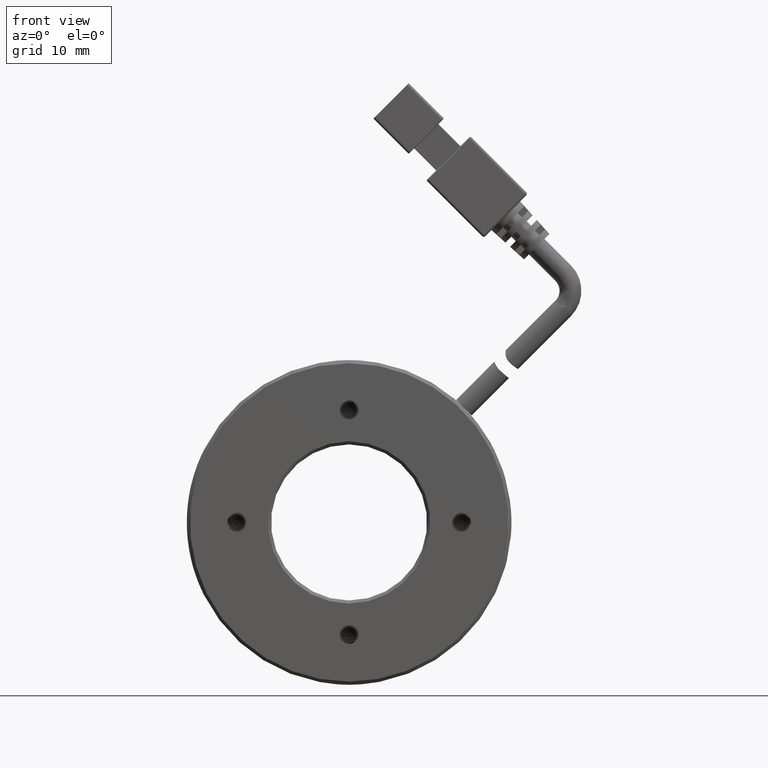
[diagram: clean part render]
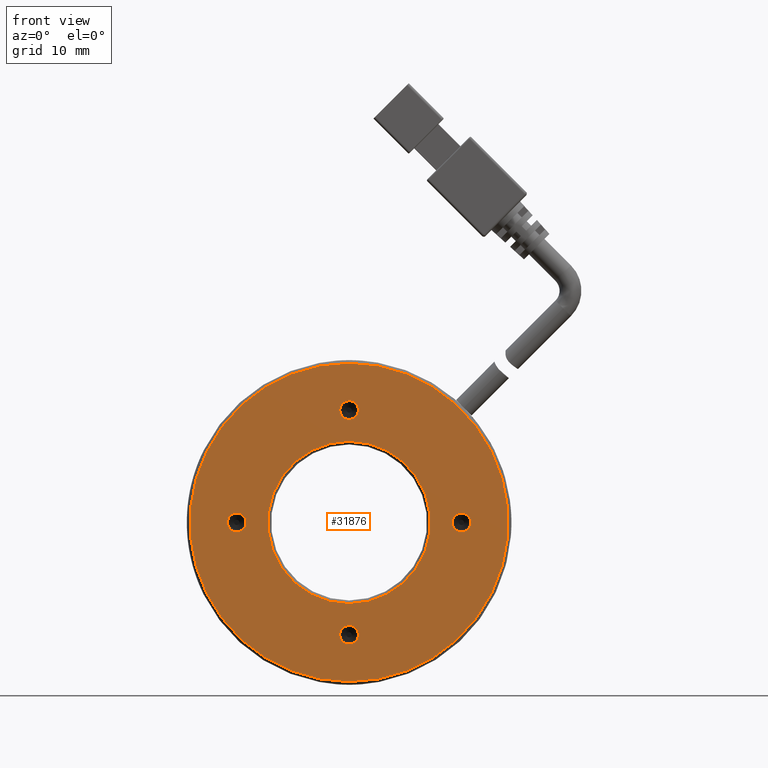
[diagram: same view with one face highlighted and labeled with its STEP entity id]
A machine part, front view. The second image highlights one B-rep face of the part: STEP entity #31876.
In plain terms, the highlighted planar face has unit normal (0, 1, 0).
Its self-contained STEP definition (entity closure, byte-faithful):
#164 = EDGE_CURVE ( 'NONE', #25248, #24536, #5331, .T. ) ;
#1008 = DIRECTION ( 'NONE',  ( 0.0000000000000000000, 0.0000000000000000000, 1.000000000000000000 ) ) ;
#1253 = ORIENTED_EDGE ( 'NONE', *, *, #15872, .F. ) ;
#1750 = ORIENTED_EDGE ( 'NONE', *, *, #28118, .F. ) ;
#1827 = VERTEX_POINT ( 'NONE', #32053 ) ;
#2661 = VERTEX_POINT ( 'NONE', #11872 ) ;
#2806 = CIRCLE ( 'NONE', #36710, 1.499999999999994400 ) ;
#3609 = DIRECTION ( 'NONE',  ( -0.0000000000000000000, -1.000000000000000000, -0.0000000000000000000 ) ) ;
#4163 = CARTESIAN_POINT ( 'NONE',  ( -0.8432364767453759400, -6.019923829761832000, -16.50000000000000700 ) ) ;
#4351 = FACE_BOUND ( 'NONE', #34930, .T. ) ;
#4488 = AXIS2_PLACEMENT_3D ( 'NONE', #11087, #36117, #14710 ) ;
#5331 = CIRCLE ( 'NONE', #18888, 1.499999999999994400 ) ;
#6559 = CIRCLE ( 'NONE', #10870, 25.50000000000002500 ) ;
#7046 = CARTESIAN_POINT ( 'NONE',  ( -0.8432364767453761600, -6.019923829761832000, -18.00000000000000400 ) ) ;
#8144 = CARTESIAN_POINT ( 'NONE',  ( -0.8432364767455022800, -6.019923829761832000, 19.49999999999999600 ) ) ;
#8912 = CARTESIAN_POINT ( 'NONE',  ( -0.8432364767453761600, -6.019923829761832000, -18.00000000000000400 ) ) ;
#9615 = DIRECTION ( 'NONE',  ( 0.0000000000000000000, -1.000000000000000000, 0.0000000000000000000 ) ) ;
#10699 = DIRECTION ( 'NONE',  ( 0.0000000000000000000, 0.0000000000000000000, -1.000000000000000000 ) ) ;
#10870 = AXIS2_PLACEMENT_3D ( 'NONE', #19493, #44583, #23112 ) ;
#10941 = EDGE_CURVE ( 'NONE', #28494, #31320, #19382, .T. ) ;
#11066 = ORIENTED_EDGE ( 'NONE', *, *, #30947, .F. ) ;
#11087 = CARTESIAN_POINT ( 'NONE',  ( 17.15676352325462500, -6.019923829761832000, 6.317795435625916900E-014 ) ) ;
#11300 = DIRECTION ( 'NONE',  ( -0.0000000000000000000, -1.000000000000000000, -0.0000000000000000000 ) ) ;
#11872 = CARTESIAN_POINT ( 'NONE',  ( -0.8432364767455025100, -6.019923829761832000, 16.50000000000000700 ) ) ;
#11915 = VERTEX_POINT ( 'NONE', #39195 ) ;
#12577 = DIRECTION ( 'NONE',  ( 0.0000000000000000000, 0.0000000000000000000, -1.000000000000000000 ) ) ;
#12832 = FACE_OUTER_BOUND ( 'NONE', #30278, .T. ) ;
#13914 = CARTESIAN_POINT ( 'NONE',  ( -0.8432364767455025100, -6.019923829761832000, 18.00000000000000400 ) ) ;
#13963 = FACE_BOUND ( 'NONE', #22976, .T. ) ;
#14652 = AXIS2_PLACEMENT_3D ( 'NONE', #14692, #39778, #18295 ) ;
#14692 = CARTESIAN_POINT ( 'NONE',  ( -26.84323647674538900, -6.019923829761832000, 0.0000000000000000000 ) ) ;
#14710 = DIRECTION ( 'NONE',  ( 0.0000000000000000000, 0.0000000000000000000, -1.000000000000000000 ) ) ;
#14795 = CIRCLE ( 'NONE', #37597, 25.50000000000002500 ) ;
#15193 = CIRCLE ( 'NONE', #40929, 1.499999999999994400 ) ;
#15379 = EDGE_LOOP ( 'NONE', ( #38876, #35094 ) ) ;
#15495 = CARTESIAN_POINT ( 'NONE',  ( -0.8432364767453765000, -6.019923829761832000, 0.0000000000000000000 ) ) ;
#15635 = VERTEX_POINT ( 'NONE', #44645 ) ;
#15872 = EDGE_CURVE ( 'NONE', #22267, #2661, #15193, .T. ) ;
#16178 = CIRCLE ( 'NONE', #36396, 13.00000000000000500 ) ;
#16348 = CARTESIAN_POINT ( 'NONE',  ( -0.8432364767453765000, -6.019923829761832000, 25.50000000000002500 ) ) ;
#16722 = EDGE_CURVE ( 'NONE', #1827, #11915, #16178, .T. ) ;
#16733 = CARTESIAN_POINT ( 'NONE',  ( -0.8432364767453761600, -6.019923829761832000, -19.49999999999999600 ) ) ;
#17202 = AXIS2_PLACEMENT_3D ( 'NONE', #31095, #9615, #34708 ) ;
#17506 = DIRECTION ( 'NONE',  ( 0.0000000000000000000, 0.0000000000000000000, -1.000000000000000000 ) ) ;
#17649 = ORIENTED_EDGE ( 'NONE', *, *, #41493, .F. ) ;
#18141 = PLANE ( 'NONE',  #14652 ) ;
#18295 = DIRECTION ( 'NONE',  ( 0.0000000000000000000, -0.0000000000000000000, 1.000000000000000000 ) ) ;
#18888 = AXIS2_PLACEMENT_3D ( 'NONE', #32932, #25214, #32773 ) ;
#19093 = DIRECTION ( 'NONE',  ( 0.0000000000000000000, 0.0000000000000000000, -1.000000000000000000 ) ) ;
#19268 = CARTESIAN_POINT ( 'NONE',  ( -18.84323647674537800, -6.019923829761832000, -1.888712825546119400E-013 ) ) ;
#19382 = CIRCLE ( 'NONE', #30668, 1.499999999999994400 ) ;
#19493 = CARTESIAN_POINT ( 'NONE',  ( -0.8432364767453765000, -6.019923829761832000, 0.0000000000000000000 ) ) ;
#19786 = VERTEX_POINT ( 'NONE', #16348 ) ;
#22003 = VERTEX_POINT ( 'NONE', #40928 ) ;
#22267 = VERTEX_POINT ( 'NONE', #8144 ) ;
#22341 = FACE_BOUND ( 'NONE', #31552, .T. ) ;
#22573 = DIRECTION ( 'NONE',  ( -0.0000000000000000000, 1.000000000000000000, 0.0000000000000000000 ) ) ;
#22881 = DIRECTION ( 'NONE',  ( 0.0000000000000000000, 0.0000000000000000000, -1.000000000000000000 ) ) ;
#22976 = EDGE_LOOP ( 'NONE', ( #31468, #1253 ) ) ;
#23112 = DIRECTION ( 'NONE',  ( 0.0000000000000000000, 0.0000000000000000000, 1.000000000000000000 ) ) ;
#23512 = EDGE_LOOP ( 'NONE', ( #30143, #11066 ) ) ;
#23686 = CARTESIAN_POINT ( 'NONE',  ( 17.15676352325462500, -6.019923829761832000, 1.500000000000057500 ) ) ;
#24197 = EDGE_CURVE ( 'NONE', #40374, #15635, #2806, .T. ) ;
#24536 = VERTEX_POINT ( 'NONE', #23686 ) ;
#25153 = CARTESIAN_POINT ( 'NONE',  ( -0.8432364767455025100, -6.019923829761832000, 18.00000000000000400 ) ) ;
#25214 = DIRECTION ( 'NONE',  ( -0.0000000000000000000, -1.000000000000000000, -0.0000000000000000000 ) ) ;
#25248 = VERTEX_POINT ( 'NONE', #39466 ) ;
#27189 = CIRCLE ( 'NONE', #17202, 13.00000000000000500 ) ;
#27471 = CIRCLE ( 'NONE', #35774, 1.499999999999994400 ) ;
#28118 = EDGE_CURVE ( 'NONE', #24536, #25248, #42283, .T. ) ;
#28473 = EDGE_CURVE ( 'NONE', #11915, #1827, #27189, .T. ) ;
#28494 = VERTEX_POINT ( 'NONE', #16733 ) ;
#28699 = DIRECTION ( 'NONE',  ( 0.0000000000000000000, 0.0000000000000000000, -1.000000000000000000 ) ) ;
#29265 = EDGE_CURVE ( 'NONE', #22003, #19786, #14795, .T. ) ;
#30143 = ORIENTED_EDGE ( 'NONE', *, *, #10941, .F. ) ;
#30232 = CARTESIAN_POINT ( 'NONE',  ( -18.84323647674537800, -6.019923829761832000, -1.500000000000183200 ) ) ;
#30278 = EDGE_LOOP ( 'NONE', ( #17649, #40737 ) ) ;
#30668 = AXIS2_PLACEMENT_3D ( 'NONE', #7046, #32161, #10699 ) ;
#30947 = EDGE_CURVE ( 'NONE', #31320, #28494, #42100, .T. ) ;
#31095 = CARTESIAN_POINT ( 'NONE',  ( -0.8432364767453765000, -6.019923829761832000, 0.0000000000000000000 ) ) ;
#31320 = VERTEX_POINT ( 'NONE', #4163 ) ;
#31468 = ORIENTED_EDGE ( 'NONE', *, *, #34106, .F. ) ;
#31552 = EDGE_LOOP ( 'NONE', ( #42258, #38271 ) ) ;
#31876 = ADVANCED_FACE ( 'NONE', ( #31894, #4351, #13963, #22341, #41454, #12832 ), #18141, .F. ) ;
#31894 = FACE_BOUND ( 'NONE', #23512, .T. ) ;
#32053 = CARTESIAN_POINT ( 'NONE',  ( -0.8432364767453765000, -6.019923829761832000, -13.00000000000000500 ) ) ;
#32161 = DIRECTION ( 'NONE',  ( -0.0000000000000000000, -1.000000000000000000, -0.0000000000000000000 ) ) ;
#32773 = DIRECTION ( 'NONE',  ( 0.0000000000000000000, 0.0000000000000000000, -1.000000000000000000 ) ) ;
#32779 = CARTESIAN_POINT ( 'NONE',  ( -18.84323647674537800, -6.019923829761832000, -1.888712825546119400E-013 ) ) ;
#32932 = CARTESIAN_POINT ( 'NONE',  ( 17.15676352325462500, -6.019923829761832000, 6.317795435625916900E-014 ) ) ;
#34016 = DIRECTION ( 'NONE',  ( -0.0000000000000000000, -1.000000000000000000, -0.0000000000000000000 ) ) ;
#34106 = EDGE_CURVE ( 'NONE', #2661, #22267, #27471, .T. ) ;
#34551 = CIRCLE ( 'NONE', #35862, 1.499999999999994400 ) ;
#34708 = DIRECTION ( 'NONE',  ( 0.0000000000000000000, 0.0000000000000000000, -1.000000000000000000 ) ) ;
#34930 = EDGE_LOOP ( 'NONE', ( #39197, #1750 ) ) ;
#35094 = ORIENTED_EDGE ( 'NONE', *, *, #28473, .F. ) ;
#35774 = AXIS2_PLACEMENT_3D ( 'NONE', #25153, #3609, #28699 ) ;
#35862 = AXIS2_PLACEMENT_3D ( 'NONE', #19268, #44356, #22881 ) ;
#36117 = DIRECTION ( 'NONE',  ( -0.0000000000000000000, -1.000000000000000000, -0.0000000000000000000 ) ) ;
#36343 = DIRECTION ( 'NONE',  ( 0.0000000000000000000, 0.0000000000000000000, -1.000000000000000000 ) ) ;
#36396 = AXIS2_PLACEMENT_3D ( 'NONE', #15495, #40584, #19093 ) ;
#36514 = EDGE_CURVE ( 'NONE', #15635, #40374, #34551, .T. ) ;
#36710 = AXIS2_PLACEMENT_3D ( 'NONE', #32779, #11300, #36343 ) ;
#37597 = AXIS2_PLACEMENT_3D ( 'NONE', #44057, #22573, #1008 ) ;
#38271 = ORIENTED_EDGE ( 'NONE', *, *, #36514, .F. ) ;
#38876 = ORIENTED_EDGE ( 'NONE', *, *, #16722, .F. ) ;
#38967 = DIRECTION ( 'NONE',  ( -0.0000000000000000000, -1.000000000000000000, -0.0000000000000000000 ) ) ;
#39195 = CARTESIAN_POINT ( 'NONE',  ( -0.8432364767453748300, -6.019923829761832000, 13.00000000000000500 ) ) ;
#39197 = ORIENTED_EDGE ( 'NONE', *, *, #164, .F. ) ;
#39229 = AXIS2_PLACEMENT_3D ( 'NONE', #8912, #34016, #12577 ) ;
#39466 = CARTESIAN_POINT ( 'NONE',  ( 17.15676352325462500, -6.019923829761832000, -1.499999999999931400 ) ) ;
#39778 = DIRECTION ( 'NONE',  ( 0.0000000000000000000, 1.000000000000000000, 0.0000000000000000000 ) ) ;
#40374 = VERTEX_POINT ( 'NONE', #30232 ) ;
#40584 = DIRECTION ( 'NONE',  ( 0.0000000000000000000, -1.000000000000000000, 0.0000000000000000000 ) ) ;
#40737 = ORIENTED_EDGE ( 'NONE', *, *, #29265, .F. ) ;
#40928 = CARTESIAN_POINT ( 'NONE',  ( -0.8432364767453733900, -6.019923829761832000, -25.50000000000002500 ) ) ;
#40929 = AXIS2_PLACEMENT_3D ( 'NONE', #13914, #38967, #17506 ) ;
#41454 = FACE_BOUND ( 'NONE', #15379, .T. ) ;
#41493 = EDGE_CURVE ( 'NONE', #19786, #22003, #6559, .T. ) ;
#42100 = CIRCLE ( 'NONE', #39229, 1.499999999999994400 ) ;
#42258 = ORIENTED_EDGE ( 'NONE', *, *, #24197, .F. ) ;
#42283 = CIRCLE ( 'NONE', #4488, 1.499999999999994400 ) ;
#44057 = CARTESIAN_POINT ( 'NONE',  ( -0.8432364767453765000, -6.019923829761832000, 0.0000000000000000000 ) ) ;
#44356 = DIRECTION ( 'NONE',  ( -0.0000000000000000000, -1.000000000000000000, -0.0000000000000000000 ) ) ;
#44583 = DIRECTION ( 'NONE',  ( -0.0000000000000000000, 1.000000000000000000, 0.0000000000000000000 ) ) ;
#44645 = CARTESIAN_POINT ( 'NONE',  ( -18.84323647674537800, -6.019923829761832000, 1.499999999999805500 ) ) ;